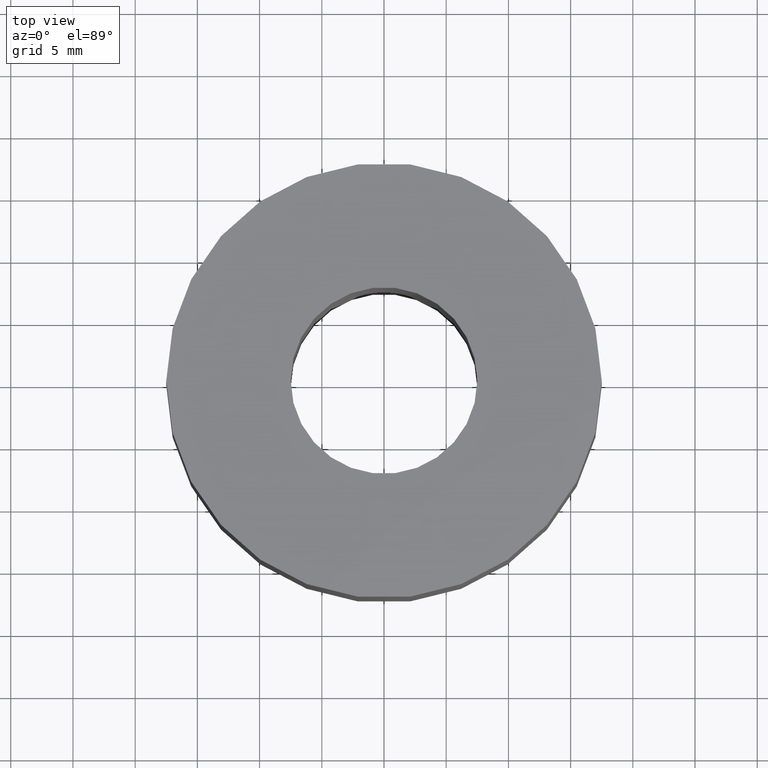
[diagram: clean part render]
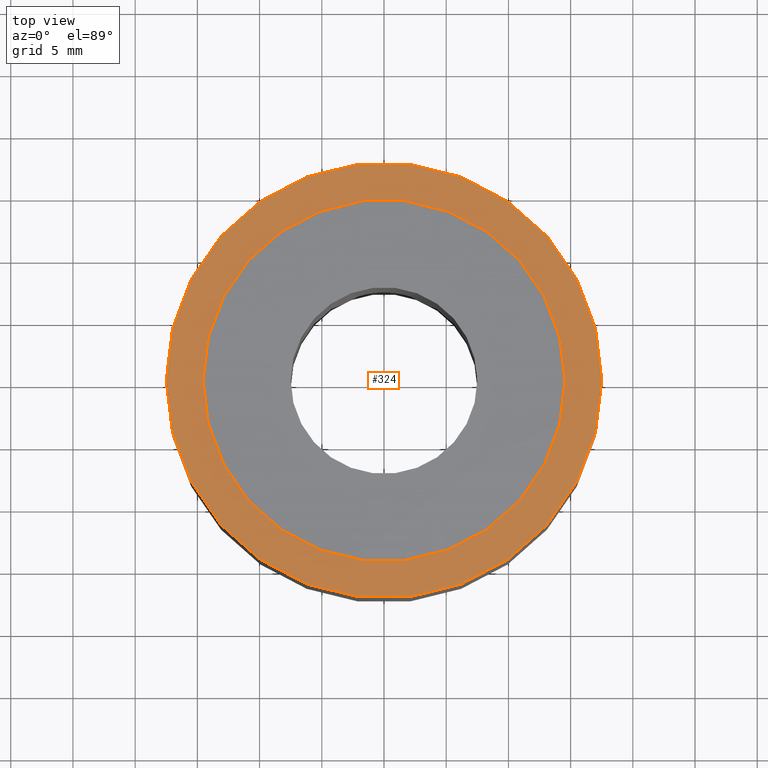
[diagram: same view with one face highlighted and labeled with its STEP entity id]
A machine part, top view. The second image highlights one B-rep face of the part: STEP entity #324.
In plain terms, the highlighted planar face has unit normal (0, 0, 1).
Its self-contained STEP definition (entity closure, byte-faithful):
#324 = ADVANCED_FACE( '', ( #391, #392 ), #393, .T. );
#391 = FACE_OUTER_BOUND( '', #484, .T. );
#392 = FACE_BOUND( '', #485, .T. );
#393 = PLANE( '', #486 );
#484 = EDGE_LOOP( '', ( #596 ) );
#485 = EDGE_LOOP( '', ( #597 ) );
#486 = AXIS2_PLACEMENT_3D( '', #598, #599, #600 );
#596 = ORIENTED_EDGE( '', *, *, #769, .T. );
#597 = ORIENTED_EDGE( '', *, *, #771, .F. );
#598 = CARTESIAN_POINT( '', ( 0.000000000000000, 0.000000000000000, 0.000000000000000 ) );
#599 = DIRECTION( '', ( 0.000000000000000, 0.000000000000000, 1.00000000000000 ) );
#600 = DIRECTION( '', ( 1.00000000000000, 0.000000000000000, 0.000000000000000 ) );
#769 = EDGE_CURVE( '', #838, #838, #839, .T. );
#771 = EDGE_CURVE( '', #842, #842, #843, .T. );
#838 = VERTEX_POINT( '', #1162 );
#839 = CIRCLE( '', #1163, 17.5000000000000 );
#842 = VERTEX_POINT( '', #1166 );
#843 = CIRCLE( '', #1167, 14.5500000000000 );
#1162 = CARTESIAN_POINT( '', ( 17.5000000000000, 0.000000000000000, 0.000000000000000 ) );
#1163 = AXIS2_PLACEMENT_3D( '', #1345, #1346, #1347 );
#1166 = CARTESIAN_POINT( '', ( 14.5500000000000, 0.000000000000000, 0.000000000000000 ) );
#1167 = AXIS2_PLACEMENT_3D( '', #1351, #1352, #1353 );
#1345 = CARTESIAN_POINT( '', ( 0.000000000000000, 0.000000000000000, 0.000000000000000 ) );
#1346 = DIRECTION( '', ( 0.000000000000000, 0.000000000000000, 1.00000000000000 ) );
#1347 = DIRECTION( '', ( 1.00000000000000, 0.000000000000000, 0.000000000000000 ) );
#1351 = CARTESIAN_POINT( '', ( 0.000000000000000, 0.000000000000000, 0.000000000000000 ) );
#1352 = DIRECTION( '', ( 0.000000000000000, 0.000000000000000, 1.00000000000000 ) );
#1353 = DIRECTION( '', ( 1.00000000000000, 0.000000000000000, 0.000000000000000 ) );